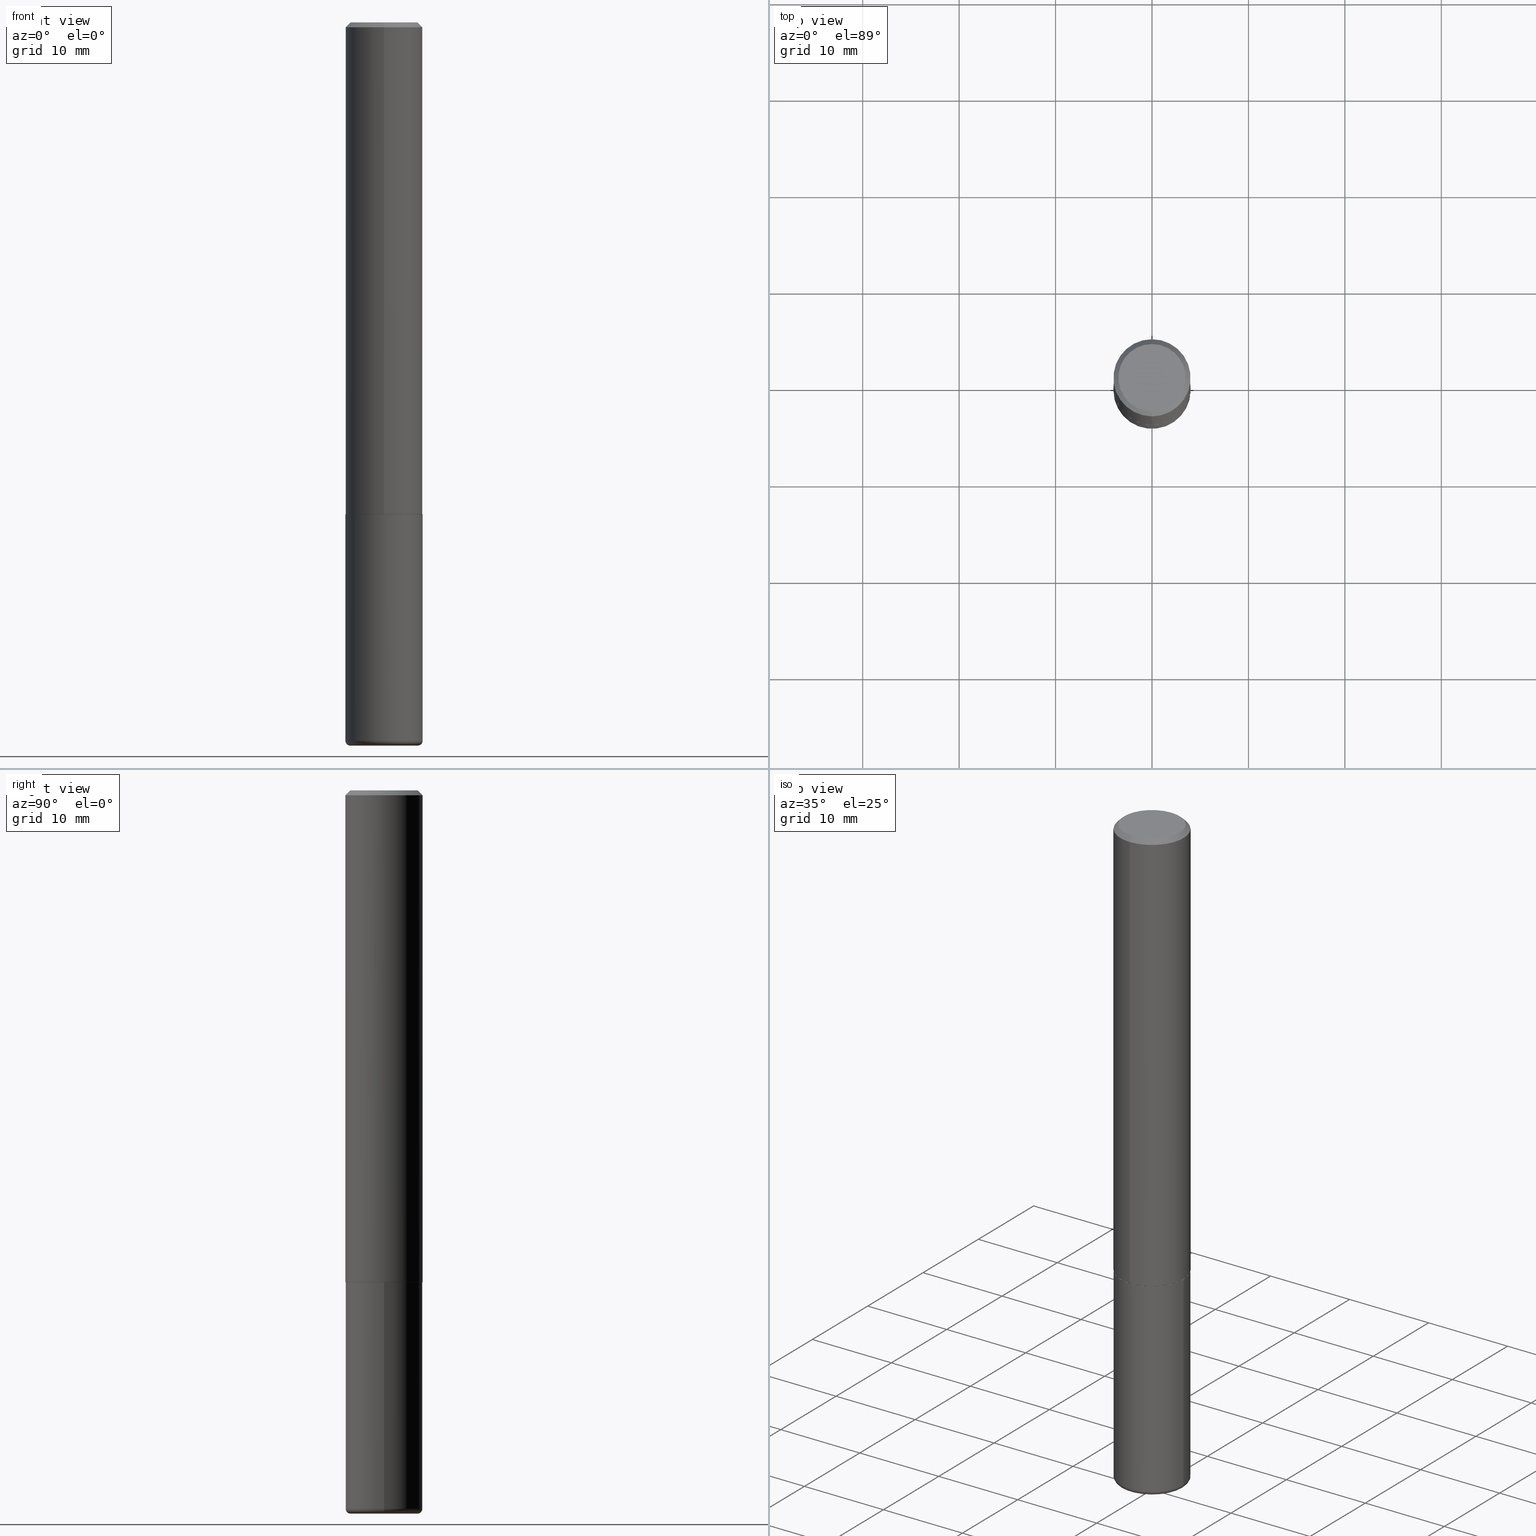
[diagram: canonical four-view strip — front | top / right | iso, engineering-drawing reading convention]
A machine part, canonical four-view strip (front | top / right | iso — engineering-drawing reading convention). The complete STEP part file that produces these views, byte-faithful:
ISO-10303-21;
HEADER;
FILE_DESCRIPTION (( 'STEP AP203' ),
    '1' );
FILE_NAME ('47498.STEP',
    '2024-03-06T03:51:00',
    ( '' ),
    ( '' ),
    'SwSTEP 2.0',
    'SolidWorks 2023',
    '' );
FILE_SCHEMA (( 'CONFIG_CONTROL_DESIGN' ));
ENDSEC;

DATA;
#1 = CC_DESIGN_PERSON_AND_ORGANIZATION_ASSIGNMENT ( #335, #49, ( #238 ) ) ;
#2 = ORIENTED_EDGE ( 'NONE', *, *, #22, .T. ) ;
#3 = LINE ( 'NONE', #181, #110 ) ;
#4 = CC_DESIGN_DATE_AND_TIME_ASSIGNMENT ( #336, #407, ( #371 ) ) ;
#5 = EDGE_LOOP ( 'NONE', ( #158, #120, #314, #282 ) ) ;
#6 = LINE ( 'NONE', #250, #11 ) ;
#7 = ADVANCED_FACE ( 'NONE', ( #367 ), #339, .T. ) ;
#8 = ADVANCED_FACE ( 'NONE', ( #264 ), #409, .T. ) ;
#9 = DIRECTION ( 'NONE',  ( -6.982962677686264344E-15, -1.000000000000000000, 3.496114991891764787E-15 ) ) ;
#10 = APPLICATION_CONTEXT ( 'configuration controlled 3d designs of mechanical parts and assemblies' ) ;
#11 = VECTOR ( 'NONE', #211, 39.37007874015748143 ) ;
#12 = ORGANIZATION ( 'UNSPECIFIED', 'UNSPECIFIED', '' ) ;
#13 = CARTESIAN_POINT ( 'NONE',  ( 0.000000000000000000, 0.000000000000000000, 0.000000000000000000 ) ) ;
#14 = DIRECTION ( 'NONE',  ( -6.982962677686266711E-15, -1.000000000000000000, 3.491481338843145583E-15 ) ) ;
#15 = CARTESIAN_POINT ( 'NONE',  ( 0.000000000000000000, 0.000000000000000000, 0.000000000000000000 ) ) ;
#16 = PERSON_AND_ORGANIZATION ( #153, #12 ) ;
#17 = CC_DESIGN_PERSON_AND_ORGANIZATION_ASSIGNMENT ( #373, #230, ( #215 ) ) ;
#18 = ORIENTED_EDGE ( 'NONE', *, *, #186, .T. ) ;
#19 = PERSON_AND_ORGANIZATION ( #153, #12 ) ;
#20 = AXIS2_PLACEMENT_3D ( 'NONE', #112, #224, #78 ) ;
#21 = SECURITY_CLASSIFICATION_LEVEL ( 'unclassified' ) ;
#22 = EDGE_CURVE ( 'NONE', #184, #284, #266, .T. ) ;
#23 = SHAPE_DEFINITION_REPRESENTATION ( #59, #203 ) ;
#24 = ADVANCED_FACE ( 'NONE', ( #60 ), #130, .T. ) ;
#25 = ORIENTED_EDGE ( 'NONE', *, *, #387, .F. ) ;
#26 = AXIS2_PLACEMENT_3D ( 'NONE', #252, #73, #9 ) ;
#27 = VERTEX_POINT ( 'NONE', #207 ) ;
#28 = CARTESIAN_POINT ( 'NONE',  ( 0.1575000000000000011, -1.099816621735586889E-15, 7.679978421878598033E-30 ) ) ;
#29 = ORIENTED_EDGE ( 'NONE', *, *, #398, .F. ) ;
#30 = CARTESIAN_POINT ( 'NONE',  ( 1.099816621735587480E-15, 0.1574999999999999456, -0.02000000000000058328 ) ) ;
#31 = ORIENTED_EDGE ( 'NONE', *, *, #377, .T. ) ;
#32 = DIRECTION ( 'NONE',  ( -4.851104656540961908E-15, -0.7071067811865496822, -0.7071067811865453523 ) ) ;
#33 = AXIS2_PLACEMENT_3D ( 'NONE', #333, #169, #404 ) ;
#34 = AXIS2_PLACEMENT_3D ( 'NONE', #190, #38, #218 ) ;
#35 = ADVANCED_FACE ( 'NONE', ( #286 ), #47, .T. ) ;
#36 = COORDINATED_UNIVERSAL_TIME_OFFSET ( 5, 0, .BEHIND. ) ;
#37 = ORIENTED_EDGE ( 'NONE', *, *, #138, .F. ) ;
#38 = DIRECTION ( 'NONE',  ( -2.445468806185136597E-29, 3.491481338843145583E-15, 1.000000000000000000 ) ) ;
#39 = DIRECTION ( 'NONE',  ( -6.982962677686265922E-15, -1.000000000000000000, 3.492539597212410327E-15 ) ) ;
#40 = EDGE_CURVE ( 'NONE', #362, #381, #369, .T. ) ;
#41 = CARTESIAN_POINT ( 'NONE',  ( -0.1575000000000000011, 1.119104808822157801E-15, -7.747322767151475583E-30 ) ) ;
#42 = ORIENTED_EDGE ( 'NONE', *, *, #223, .F. ) ;
#43 = FACE_OUTER_BOUND ( 'NONE', #275, .T. ) ;
#44 = CARTESIAN_POINT ( 'NONE',  ( 1.539641889943640501E-28, 1.398047307151391125E-15, -2.952799999999998981 ) ) ;
#45 = APPROVAL_PERSON_ORGANIZATION ( #307, #366, #302 ) ;
#46 = CARTESIAN_POINT ( 'NONE',  ( -6.786541213832790321E-45, 9.695248793097192351E-31, 2.775988223823005522E-16 ) ) ;
#47 = CYLINDRICAL_SURFACE ( 'NONE', #202, 0.1575000000000001399 ) ;
#48 = ORIENTED_EDGE ( 'NONE', *, *, #138, .T. ) ;
#49 = PERSON_AND_ORGANIZATION_ROLE ( 'design_supplier' ) ;
#50 = APPLICATION_PROTOCOL_DEFINITION ( 'international standard', 'config_control_design', 1994, #338 ) ;
#51 = AXIS2_PLACEMENT_3D ( 'NONE', #15, #140, #146 ) ;
#52 =( CONVERSION_BASED_UNIT ( 'INCH', #375 ) LENGTH_UNIT ( ) NAMED_UNIT ( #253 ) );
#53 = AXIS2_PLACEMENT_3D ( 'NONE', #129, #393, #101 ) ;
#54 = PLANE ( 'NONE',  #257 ) ;
#55 = ORIENTED_EDGE ( 'NONE', *, *, #245, .F. ) ;
#56 = ORIENTED_EDGE ( 'NONE', *, *, #157, .T. ) ;
#57 = CIRCLE ( 'NONE', #222, 0.1374999999999997335 ) ;
#58 = CARTESIAN_POINT ( 'NONE',  ( 1.115552095143406798E-15, 0.1564999999999929781, -2.007900000000000240 ) ) ;
#59 = PRODUCT_DEFINITION_SHAPE ( 'NONE', 'NONE',  #215 ) ;
#60 = FACE_OUTER_BOUND ( 'NONE', #98, .T. ) ;
#61 = VERTEX_POINT ( 'NONE', #139 ) ;
#62 = DIRECTION ( 'NONE',  ( -6.982962677686265922E-15, -1.000000000000000000, 3.492539597212410327E-15 ) ) ;
#63 = ADVANCED_FACE ( 'NONE', ( #296 ), #325, .T. ) ;
#64 = EDGE_LOOP ( 'NONE', ( #320, #164 ) ) ;
#65 = CARTESIAN_POINT ( 'NONE',  ( -1.080528434649015779E-15, -0.1575000000000000844, -0.01999999999999948347 ) ) ;
#66 = CALENDAR_DATE ( 2024, 5, 3 ) ;
#67 = EDGE_LOOP ( 'NONE', ( #37, #350 ) ) ;
#68 = CARTESIAN_POINT ( 'NONE',  ( 1.119104808822183439E-15, 0.1574999999999932287, -2.006899999999999906 ) ) ;
#69 = AXIS2_PLACEMENT_3D ( 'NONE', #91, #312, #351 ) ;
#70 = LOCAL_TIME ( 22, 51, 0.000000000000000000, #265 ) ;
#71 = DIRECTION ( 'NONE',  ( -2.444729828315544280E-29, 3.492539597212409932E-15, 1.000000000000000000 ) ) ;
#72 = DIRECTION ( 'NONE',  ( 1.000000000000000000, -6.982962677686261977E-15, 0.000000000000000000 ) ) ;
#73 = DIRECTION ( 'NONE',  ( -2.444729828315544280E-29, 3.492539597212409932E-15, 1.000000000000000000 ) ) ;
#74 = DIRECTION ( 'NONE',  ( -2.444729828315544280E-29, 3.492539597212409932E-15, 1.000000000000000000 ) ) ;
#75 = DIRECTION ( 'NONE',  ( -2.444729828315544280E-29, 3.492539597212409932E-15, 1.000000000000000000 ) ) ;
#76 = ADVANCED_FACE ( 'NONE', ( #263 ), #137, .T. ) ;
#77 = CC_DESIGN_PERSON_AND_ORGANIZATION_ASSIGNMENT ( #19, #141, ( #371 ) ) ;
#78 = DIRECTION ( 'NONE',  ( -6.982962677686265133E-15, -1.000000000000000000, 3.492539597212409932E-15 ) ) ;
#79 = CONICAL_SURFACE ( 'NONE', #396, 0.1565000000000000002, 0.7853981633975336552 ) ;
#80 =( NAMED_UNIT ( * ) SI_UNIT ( $, .STERADIAN. ) SOLID_ANGLE_UNIT ( ) );
#81 = ADVANCED_FACE ( 'NONE', ( #106 ), #415, .T. ) ;
#82 = DIRECTION ( 'NONE',  ( 0.000000000000000000, 0.000000000000000000, 1.000000000000000000 ) ) ;
#83 = DATE_TIME_ROLE ( 'creation_date' ) ;
#84 = ORIENTED_EDGE ( 'NONE', *, *, #361, .T. ) ;
#85 = COORDINATED_UNIVERSAL_TIME_OFFSET ( 5, 0, .BEHIND. ) ;
#86 = VECTOR ( 'NONE', #291, 39.37007874015748143 ) ;
#87 = DIRECTION ( 'NONE',  ( -4.937700262164969294E-15, -0.7071067811866054154, 0.7071067811864896191 ) ) ;
#88 = APPROVAL_DATE_TIME ( #176, #366 ) ;
#89 = APPROVAL ( #267, 'UNSPECIFIED' ) ;
#90 = ORIENTED_EDGE ( 'NONE', *, *, #329, .T. ) ;
#91 = CARTESIAN_POINT ( 'NONE',  ( 7.220980290903469061E-29, -1.030964609733603695E-14, -2.952799999999998981 ) ) ;
#92 = EDGE_LOOP ( 'NONE', ( #271, #411, #175, #323 ) ) ;
#93 = CC_DESIGN_SECURITY_CLASSIFICATION ( #371, ( #238 ) ) ;
#94 = CARTESIAN_POINT ( 'NONE',  ( 0.1574999999999998346, -1.134068053669641403E-14, -2.933100000000000041 ) ) ;
#95 = ADVANCED_FACE ( 'NONE', ( #399 ), #54, .F. ) ;
#96 = DIRECTION ( 'NONE',  ( 7.105427357601001859E-15, 1.000000000000000000, -3.491481338843145583E-15 ) ) ;
#97 = APPROVAL_STATUS ( 'not_yet_approved' ) ;
#98 = EDGE_LOOP ( 'NONE', ( #400, #178, #182, #150 ) ) ;
#99 = DIRECTION ( 'NONE',  ( -2.444729828315543719E-29, 3.492539597212410327E-15, 1.000000000000000000 ) ) ;
#100 = AXIS2_PLACEMENT_3D ( 'NONE', #327, #294, #397 ) ;
#101 = DIRECTION ( 'NONE',  ( -1.000000000000000000, 6.982962677686265922E-15, -4.876176775795935793E-29 ) ) ;
#102 = DESIGN_CONTEXT ( 'detailed design', #10, 'design' ) ;
#103 = DIRECTION ( 'NONE',  ( -2.445468806185136877E-29, 3.491481338843145188E-15, 1.000000000000000000 ) ) ;
#104 = DIRECTION ( 'NONE',  ( 1.000000000000000000, -6.982962677686261977E-15, 0.000000000000000000 ) ) ;
#105 = EDGE_CURVE ( 'NONE', #284, #217, #201, .T. ) ;
#106 = FACE_OUTER_BOUND ( 'NONE', #232, .T. ) ;
#107 = CARTESIAN_POINT ( 'NONE',  ( -0.1378000000000000058, -9.226138656798647747E-15, -2.952799999999998981 ) ) ;
#108 = ORIENTED_EDGE ( 'NONE', *, *, #119, .F. ) ;
#109 = ADVANCED_FACE ( 'NONE', ( #206 ), #318, .T. ) ;
#110 = VECTOR ( 'NONE', #321, 39.37007874015748143 ) ;
#111 = CARTESIAN_POINT ( 'NONE',  ( 0.000000000000000000, 0.000000000000000000, 0.000000000000000000 ) ) ;
#112 = CARTESIAN_POINT ( 'NONE',  ( 0.000000000000000000, 0.000000000000000000, 0.000000000000000000 ) ) ;
#113 = ORIENTED_EDGE ( 'NONE', *, *, #269, .F. ) ;
#114 = EDGE_CURVE ( 'NONE', #284, #184, #376, .T. ) ;
#115 = DIRECTION ( 'NONE',  ( 6.982962677686265922E-15, 1.000000000000000000, -3.492539597212410327E-15 ) ) ;
#116 = AXIS2_PLACEMENT_3D ( 'NONE', #360, #163, #72 ) ;
#117 = PERSON_AND_ORGANIZATION ( #153, #12 ) ;
#118 = ORIENTED_EDGE ( 'NONE', *, *, #219, .T. ) ;
#119 = EDGE_CURVE ( 'NONE', #184, #234, #6, .T. ) ;
#120 = ORIENTED_EDGE ( 'NONE', *, *, #300, .T. ) ;
#121 = CARTESIAN_POINT ( 'NONE',  ( -1.080528434649015779E-15, -0.1575000000000000844, -0.01999999999999948347 ) ) ;
#122 = EDGE_LOOP ( 'NONE', ( #108, #2, #251, #125 ) ) ;
#123 = AXIS2_PLACEMENT_3D ( 'NONE', #191, #349, #62 ) ;
#124 = FACE_OUTER_BOUND ( 'NONE', #64, .T. ) ;
#125 = ORIENTED_EDGE ( 'NONE', *, *, #300, .F. ) ;
#126 = LINE ( 'NONE', #28, #204 ) ;
#127 = ORIENTED_EDGE ( 'NONE', *, *, #40, .F. ) ;
#128 = CARTESIAN_POINT ( 'NONE',  ( -1.099816621735539360E-15, -0.1575000000000072453, -2.006899999999999018 ) ) ;
#129 = CARTESIAN_POINT ( 'NONE',  ( 4.910256815939135309E-29, -7.010545380263150922E-15, -2.007899999999999796 ) ) ;
#130 = CONICAL_SURFACE ( 'NONE', #403, 0.1575000000000000289, 0.7853981633974479459 ) ;
#131 = CIRCLE ( 'NONE', #135, 0.1575000000000000011 ) ;
#132 = DIRECTION ( 'NONE',  ( -6.982962677686265922E-15, -1.000000000000000000, 3.491179544618866730E-15 ) ) ;
#133 = ADVANCED_FACE ( 'NONE', ( #124 ), #159, .F. ) ;
#134 = AXIS2_PLACEMENT_3D ( 'NONE', #273, #287, #389 ) ;
#135 = AXIS2_PLACEMENT_3D ( 'NONE', #395, #168, #104 ) ;
#136 = DIRECTION ( 'NONE',  ( -1.000000000000000000, 6.982962677686265922E-15, -4.876176775795935793E-29 ) ) ;
#137 = CYLINDRICAL_SURFACE ( 'NONE', #355, 0.1575000000000000011 ) ;
#138 = EDGE_CURVE ( 'NONE', #213, #374, #237, .T. ) ;
#139 = CARTESIAN_POINT ( 'NONE',  ( -1.011923454671299856E-15, -0.1374999999999997335, 7.578230169990059811E-16 ) ) ;
#140 = DIRECTION ( 'NONE',  ( -2.445468806185136597E-29, 3.491481338843145583E-15, 1.000000000000000000 ) ) ;
#141 = PERSON_AND_ORGANIZATION_ROLE ( 'classification_officer' ) ;
#142 = AXIS2_PLACEMENT_3D ( 'NONE', #402, #259, #305 ) ;
#143 = VECTOR ( 'NONE', #103, 39.37007874015748143 ) ;
#144 = CARTESIAN_POINT ( 'NONE',  ( 0.000000000000000000, 0.000000000000000000, 0.000000000000000000 ) ) ;
#145 = APPROVAL_DATE_TIME ( #370, #89 ) ;
#146 = DIRECTION ( 'NONE',  ( 1.000000000000000000, -6.982962677686265922E-15, 4.876176775795935232E-29 ) ) ;
#147 = DIRECTION ( 'NONE',  ( 1.000000000000000000, 0.000000000000000000, 0.000000000000000000 ) ) ;
#148 = CARTESIAN_POINT ( 'NONE',  ( 4.908773022274780866E-29, -7.012670257242796607E-15, -2.007899999999999796 ) ) ;
#149 = AXIS2_PLACEMENT_3D ( 'NONE', #240, #99, #414 ) ;
#150 = ORIENTED_EDGE ( 'NONE', *, *, #173, .F. ) ;
#151 = VERTEX_POINT ( 'NONE', #121 ) ;
#152 = VERTEX_POINT ( 'NONE', #30 ) ;
#153 = PERSON ( 'UNSPECIFIED', 'UNSPECIFIED', 'UNSPECIFIED', ('UNSPECIFIED'), ('UNSPECIFIED'), ('UNSPECIFIED') ) ;
#154 = ORIENTED_EDGE ( 'NONE', *, *, #236, .T. ) ;
#155 = AXIS2_PLACEMENT_3D ( 'NONE', #354, #417, #413 ) ;
#156 = LINE ( 'NONE', #65, #166 ) ;
#157 = EDGE_CURVE ( 'NONE', #374, #27, #390, .T. ) ;
#158 = ORIENTED_EDGE ( 'NONE', *, *, #186, .F. ) ;
#159 = PLANE ( 'NONE',  #149 ) ;
#160 = EDGE_CURVE ( 'NONE', #61, #151, #156, .T. ) ;
#161 = DIRECTION ( 'NONE',  ( -2.444729828315544280E-29, 3.492539597212409932E-15, 1.000000000000000000 ) ) ;
#162 = APPROVAL_PERSON_ORGANIZATION ( #310, #359, #183 ) ;
#163 = DIRECTION ( 'NONE',  ( -2.445468806185136597E-29, 3.491481338843145583E-15, 1.000000000000000000 ) ) ;
#164 = ORIENTED_EDGE ( 'NONE', *, *, #22, .F. ) ;
#165 = DIRECTION ( 'NONE',  ( -6.982962677686265922E-15, -1.000000000000000000, 3.469013325287948560E-15 ) ) ;
#166 = VECTOR ( 'NONE', #32, 39.37007874015748143 ) ;
#167 = CIRCLE ( 'NONE', #289, 0.01969999999999962059 ) ;
#168 = DIRECTION ( 'NONE',  ( -2.445468806185136597E-29, 3.491481338843145583E-15, 1.000000000000000000 ) ) ;
#169 = DIRECTION ( 'NONE',  ( -2.445468806185136597E-29, 3.491481338843145583E-15, 1.000000000000000000 ) ) ;
#170 = PERSON_AND_ORGANIZATION_ROLE ( 'design_owner' ) ;
#171 = ORIENTED_EDGE ( 'NONE', *, *, #219, .F. ) ;
#172 = APPROVAL_ROLE ( '' ) ;
#173 = EDGE_CURVE ( 'NONE', #188, #152, #285, .T. ) ;
#174 = CONICAL_SURFACE ( 'NONE', #258, 0.1575000000000000289, 0.7853981633974479459 ) ;
#175 = ORIENTED_EDGE ( 'NONE', *, *, #334, .F. ) ;
#176 = DATE_AND_TIME ( #227, #332 ) ;
#177 =( LENGTH_UNIT ( ) NAMED_UNIT ( * ) SI_UNIT ( $, .METRE. ) );
#178 = ORIENTED_EDGE ( 'NONE', *, *, #160, .T. ) ;
#179 = APPROVAL_PERSON_ORGANIZATION ( #16, #89, #172 ) ;
#180 = EDGE_LOOP ( 'NONE', ( #270, #84 ) ) ;
#181 = CARTESIAN_POINT ( 'NONE',  ( 1.119104808822158392E-15, 0.1575000000000001399, -5.500749865609550376E-16 ) ) ;
#182 = ORIENTED_EDGE ( 'NONE', *, *, #245, .T. ) ;
#183 = APPROVAL_ROLE ( '' ) ;
#184 = VERTEX_POINT ( 'NONE', #58 ) ;
#185 = DIRECTION ( 'NONE',  ( -1.000000000000000000, 7.105427357600965571E-15, 0.000000000000000000 ) ) ;
#186 = EDGE_CURVE ( 'NONE', #234, #152, #3, .T. ) ;
#187 = AXIS2_PLACEMENT_3D ( 'NONE', #148, #161, #214 ) ;
#188 = VERTEX_POINT ( 'NONE', #283 ) ;
#189 = CIRCLE ( 'NONE', #155, 0.1575000000000000011 ) ;
#190 = CARTESIAN_POINT ( 'NONE',  ( 7.220980290903469061E-29, -1.030964609733603695E-14, -2.952799999999998981 ) ) ;
#191 = CARTESIAN_POINT ( 'NONE',  ( -6.786541213832790321E-45, 9.695248793097192351E-31, 2.775988223823005522E-16 ) ) ;
#192 = FACE_OUTER_BOUND ( 'NONE', #92, .T. ) ;
#193 = AXIS2_PLACEMENT_3D ( 'NONE', #144, #82, #147 ) ;
#194 = CARTESIAN_POINT ( 'NONE',  ( -1.099816621735587677E-15, -0.1575000000000001399, 5.500749865609550376E-16 ) ) ;
#195 = CARTESIAN_POINT ( 'NONE',  ( 0.1575000000000000011, -8.110362001998737613E-15, -2.007899999999999796 ) ) ;
#196 = AXIS2_PLACEMENT_3D ( 'NONE', #301, #372, #199 ) ;
#197 = DIRECTION ( 'NONE',  ( -6.982962677686265133E-15, -1.000000000000000000, 3.492539597212409932E-15 ) ) ;
#198 = PERSON_AND_ORGANIZATION_ROLE ( 'creator' ) ;
#199 = DIRECTION ( 'NONE',  ( 1.000000000000000000, -6.982962677686268288E-15, 0.000000000000000000 ) ) ;
#200 = CALENDAR_DATE ( 2024, 5, 3 ) ;
#201 = LINE ( 'NONE', #235, #330 ) ;
#202 = AXIS2_PLACEMENT_3D ( 'NONE', #13, #231, #197 ) ;
#203 = ADVANCED_BREP_SHAPE_REPRESENTATION ( '47498', ( #268, #418, #193 ), #319 ) ;
#204 = VECTOR ( 'NONE', #386, 39.37007874015748143 ) ;
#205 = MECHANICAL_CONTEXT ( 'NONE', #338, 'mechanical' ) ;
#206 = FACE_OUTER_BOUND ( 'NONE', #277, .T. ) ;
#207 = CARTESIAN_POINT ( 'NONE',  ( -0.1574999999999998346, -9.121759106138672895E-15, -2.933100000000000041 ) ) ;
#208 = EDGE_LOOP ( 'NONE', ( #388, #18, #55, #29 ) ) ;
#209 = LOCAL_TIME ( 22, 51, 0.000000000000000000, #85 ) ;
#210 = ORIENTED_EDGE ( 'NONE', *, *, #160, .F. ) ;
#211 = DIRECTION ( 'NONE',  ( 5.024295867788490741E-15, 0.7071067811866103003, 0.7071067811864847341 ) ) ;
#212 = ORIENTED_EDGE ( 'NONE', *, *, #387, .T. ) ;
#213 = VERTEX_POINT ( 'NONE', #278 ) ;
#214 = DIRECTION ( 'NONE',  ( -6.982962677686265922E-15, -1.000000000000000000, 3.491179544618866730E-15 ) ) ;
#215 = PRODUCT_DEFINITION ( 'UNKNOWN', '', #238, #102 ) ;
#216 = LOCAL_TIME ( 22, 51, 0.000000000000000000, #340 ) ;
#217 = VERTEX_POINT ( 'NONE', #128 ) ;
#218 = DIRECTION ( 'NONE',  ( 1.000000000000000000, -6.982962677686265922E-15, 0.000000000000000000 ) ) ;
#219 = EDGE_CURVE ( 'NONE', #381, #362, #189, .T. ) ;
#220 = CARTESIAN_POINT ( 'NONE',  ( 4.889459656631096617E-31, -6.985079194424830218E-17, -0.02000000000000003511 ) ) ;
#221 = DIRECTION ( 'NONE',  ( 6.982962677686264344E-15, 1.000000000000000000, -3.496114991891764787E-15 ) ) ;
#222 = AXIS2_PLACEMENT_3D ( 'NONE', #46, #324, #39 ) ;
#223 = EDGE_CURVE ( 'NONE', #249, #381, #126, .T. ) ;
#224 = DIRECTION ( 'NONE',  ( -2.444729828315544280E-29, 3.492539597212409932E-15, 1.000000000000000000 ) ) ;
#225 = FACE_OUTER_BOUND ( 'NONE', #392, .T. ) ;
#226 = DIRECTION ( 'NONE',  ( -2.445468806185136597E-29, 3.491481338843145583E-15, 1.000000000000000000 ) ) ;
#227 = CALENDAR_DATE ( 2024, 5, 3 ) ;
#228 = UNCERTAINTY_MEASURE_WITH_UNIT (LENGTH_MEASURE( 1.000000000000000082E-05 ), #52, 'distance_accuracy_value', 'NONE');
#229 = CC_DESIGN_APPROVAL ( #366, ( #238 ) ) ;
#230 = PERSON_AND_ORGANIZATION_ROLE ( 'creator' ) ;
#231 = DIRECTION ( 'NONE',  ( -2.444729828315544280E-29, 3.492539597212409932E-15, 1.000000000000000000 ) ) ;
#232 = EDGE_LOOP ( 'NONE', ( #247, #154, #239, #311 ) ) ;
#233 = DATE_AND_TIME ( #299, #216 ) ;
#234 = VERTEX_POINT ( 'NONE', #68 ) ;
#235 = CARTESIAN_POINT ( 'NONE',  ( -1.092833659057851571E-15, -0.1565000000000069946, -2.007899999999998908 ) ) ;
#236 = EDGE_CURVE ( 'NONE', #374, #213, #378, .T. ) ;
#237 = CIRCLE ( 'NONE', #69, 0.1378000000000000058 ) ;
#238 = PRODUCT_DEFINITION_FORMATION_WITH_SPECIFIED_SOURCE ( 'ANY', '', #279, .NOT_KNOWN. ) ;
#239 = ORIENTED_EDGE ( 'NONE', *, *, #382, .T. ) ;
#240 = CARTESIAN_POINT ( 'NONE',  ( 4.908773022274780866E-29, -7.012670257242796607E-15, -2.007899999999999796 ) ) ;
#241 = ORIENTED_EDGE ( 'NONE', *, *, #329, .F. ) ;
#242 = DIRECTION ( 'NONE',  ( -6.982962677686264344E-15, -1.000000000000000000, 3.496114991891764787E-15 ) ) ;
#243 = AXIS2_PLACEMENT_3D ( 'NONE', #280, #352, #383 ) ;
#244 = AXIS2_PLACEMENT_3D ( 'NONE', #358, #71, #242 ) ;
#245 = EDGE_CURVE ( 'NONE', #151, #152, #274, .T. ) ;
#246 = DIRECTION ( 'NONE',  ( 2.444729828315544280E-29, -3.492539597212409932E-15, -1.000000000000000000 ) ) ;
#247 = ORIENTED_EDGE ( 'NONE', *, *, #157, .F. ) ;
#248 = CARTESIAN_POINT ( 'NONE',  ( -0.1378000000000000058, -9.261736025083411415E-15, -2.933100000000000041 ) ) ;
#249 = VERTEX_POINT ( 'NONE', #94 ) ;
#250 = CARTESIAN_POINT ( 'NONE',  ( 1.111999381464605505E-15, 0.1564999999999929781, -2.007900000000000240 ) ) ;
#251 = ORIENTED_EDGE ( 'NONE', *, *, #105, .T. ) ;
#252 = CARTESIAN_POINT ( 'NONE',  ( 4.889459656631096617E-31, -6.985079194424830218E-17, -0.02000000000000003511 ) ) ;
#253 = DIMENSIONAL_EXPONENTS ( 1.000000000000000000, 0.000000000000000000, 0.000000000000000000, 0.000000000000000000, 0.000000000000000000, 0.000000000000000000, 0.000000000000000000 ) ;
#254 = FACE_OUTER_BOUND ( 'NONE', #67, .T. ) ;
#255 = DIRECTION ( 'NONE',  ( 1.000000000000000000, -6.982962677686265133E-15, 0.000000000000000000 ) ) ;
#256 = PLANE ( 'NONE',  #53 ) ;
#257 = AXIS2_PLACEMENT_3D ( 'NONE', #408, #308, #115 ) ;
#258 = AXIS2_PLACEMENT_3D ( 'NONE', #220, #328, #221 ) ;
#259 = DIRECTION ( 'NONE',  ( -2.444729828315544280E-29, 3.492539597212409932E-15, 1.000000000000000000 ) ) ;
#260 = CARTESIAN_POINT ( 'NONE',  ( 0.1378000000000000058, -1.120311617194599798E-14, -2.933100000000000041 ) ) ;
#261 = DIRECTION ( 'NONE',  ( 1.000000000000000000, -6.982962677686265922E-15, 4.876176775795935232E-29 ) ) ;
#262 = CALENDAR_DATE ( 2024, 5, 3 ) ;
#263 = FACE_OUTER_BOUND ( 'NONE', #353, .T. ) ;
#264 = FACE_OUTER_BOUND ( 'NONE', #208, .T. ) ;
#265 = COORDINATED_UNIVERSAL_TIME_OFFSET ( 5, 0, .BEHIND. ) ;
#266 = CIRCLE ( 'NONE', #243, 0.1565000000000000002 ) ;
#267 = APPROVAL_STATUS ( 'not_yet_approved' ) ;
#268 = MANIFOLD_SOLID_BREP ( 'Body-Move/Copy2[1]', #303 ) ;
#269 = EDGE_CURVE ( 'NONE', #188, #61, #281, .T. ) ;
#270 = ORIENTED_EDGE ( 'NONE', *, *, #269, .T. ) ;
#271 = ORIENTED_EDGE ( 'NONE', *, *, #114, .T. ) ;
#272 = COORDINATED_UNIVERSAL_TIME_OFFSET ( 5, 0, .BEHIND. ) ;
#273 = CARTESIAN_POINT ( 'NONE',  ( 7.172804555421624566E-29, -1.024086391496083050E-14, -2.933100000000000041 ) ) ;
#274 = CIRCLE ( 'NONE', #244, 0.1575000000000000289 ) ;
#275 = EDGE_LOOP ( 'NONE', ( #210, #113, #343, #31 ) ) ;
#276 = CC_DESIGN_PERSON_AND_ORGANIZATION_ASSIGNMENT ( #342, #198, ( #238 ) ) ;
#277 = EDGE_LOOP ( 'NONE', ( #48, #56, #25, #406 ) ) ;
#278 = CARTESIAN_POINT ( 'NONE',  ( 0.1378000000000000058, -1.127189835432120443E-14, -2.952799999999998981 ) ) ;
#279 = PRODUCT ( '47498', '47498', '', ( #205 ) ) ;
#280 = CARTESIAN_POINT ( 'NONE',  ( 4.908773022274780866E-29, -7.012670257242796607E-15, -2.007899999999999796 ) ) ;
#281 = CIRCLE ( 'NONE', #123, 0.1374999999999997335 ) ;
#282 = ORIENTED_EDGE ( 'NONE', *, *, #377, .F. ) ;
#283 = CARTESIAN_POINT ( 'NONE',  ( 1.029986994958723590E-15, 0.1374999999999997335, -2.026253722344048274E-16 ) ) ;
#284 = VERTEX_POINT ( 'NONE', #315 ) ;
#285 = LINE ( 'NONE', #322, #295 ) ;
#286 = FACE_OUTER_BOUND ( 'NONE', #5, .T. ) ;
#287 = DIRECTION ( 'NONE',  ( -2.445468806185136597E-29, 3.491481338843145583E-15, 1.000000000000000000 ) ) ;
#288 = ADVANCED_FACE ( 'NONE', ( #192 ), #79, .T. ) ;
#289 = AXIS2_PLACEMENT_3D ( 'NONE', #260, #14, #255 ) ;
#290 = PLANE ( 'NONE',  #356 ) ;
#291 = DIRECTION ( 'NONE',  ( -2.444729828315544280E-29, 3.492539597212410327E-15, 1.000000000000000000 ) ) ;
#292 = CC_DESIGN_PERSON_AND_ORGANIZATION_ASSIGNMENT ( #117, #170, ( #279 ) ) ;
#293 = AXIS2_PLACEMENT_3D ( 'NONE', #248, #96, #185 ) ;
#294 = DIRECTION ( 'NONE',  ( -2.444729828315544280E-29, 3.492539597212409932E-15, 1.000000000000000000 ) ) ;
#295 = VECTOR ( 'NONE', #344, 39.37007874015748143 ) ;
#296 = FACE_OUTER_BOUND ( 'NONE', #122, .T. ) ;
#297 = DIRECTION ( 'NONE',  ( 2.438088387897960049E-29, -3.491481338843145188E-15, -1.000000000000000000 ) ) ;
#298 = EDGE_CURVE ( 'NONE', #27, #249, #326, .T. ) ;
#299 = CALENDAR_DATE ( 2024, 5, 3 ) ;
#300 = EDGE_CURVE ( 'NONE', #234, #217, #416, .T. ) ;
#301 = CARTESIAN_POINT ( 'NONE',  ( 4.910256815939135309E-29, -7.010545380263150922E-15, -2.007899999999999796 ) ) ;
#302 = APPROVAL_ROLE ( '' ) ;
#303 = CLOSED_SHELL ( 'NONE', ( #7, #109, #405, #76, #81, #313 ) ) ;
#304 = LOCAL_TIME ( 22, 51, 0.000000000000000000, #36 ) ;
#305 = DIRECTION ( 'NONE',  ( -6.982962677686265922E-15, -1.000000000000000000, 3.491179544618866730E-15 ) ) ;
#306 = APPROVAL_STATUS ( 'not_yet_approved' ) ;
#307 = PERSON_AND_ORGANIZATION ( #153, #12 ) ;
#308 = DIRECTION ( 'NONE',  ( 2.444729828315543719E-29, -3.492539597212410327E-15, -1.000000000000000000 ) ) ;
#309 = CC_DESIGN_DATE_AND_TIME_ASSIGNMENT ( #233, #83, ( #215 ) ) ;
#310 = PERSON_AND_ORGANIZATION ( #153, #12 ) ;
#311 = ORIENTED_EDGE ( 'NONE', *, *, #298, .F. ) ;
#312 = DIRECTION ( 'NONE',  ( -2.445468806185136597E-29, 3.491481338843145583E-15, 1.000000000000000000 ) ) ;
#313 = ADVANCED_FACE ( 'NONE', ( #254 ), #290, .T. ) ;
#314 = ORIENTED_EDGE ( 'NONE', *, *, #398, .T. ) ;
#315 = CARTESIAN_POINT ( 'NONE',  ( -1.092833659057851571E-15, -0.1565000000000069946, -2.007899999999998908 ) ) ;
#316 = APPROVAL_DATE_TIME ( #346, #359 ) ;
#317 = ORIENTED_EDGE ( 'NONE', *, *, #223, .T. ) ;
#318 = TOROIDAL_SURFACE ( 'NONE', #134, 0.1378000000000000058, 0.01969999999999962059 ) ;
#319 =( GEOMETRIC_REPRESENTATION_CONTEXT ( 3 ) GLOBAL_UNCERTAINTY_ASSIGNED_CONTEXT ( ( #228 ) ) GLOBAL_UNIT_ASSIGNED_CONTEXT ( ( #52, #401, #80 ) ) REPRESENTATION_CONTEXT ( 'NONE', 'WORKASPACE' ) );
#320 = ORIENTED_EDGE ( 'NONE', *, *, #114, .F. ) ;
#321 = DIRECTION ( 'NONE',  ( -2.444729828315544280E-29, 3.492539597212410327E-15, 1.000000000000000000 ) ) ;
#322 = CARTESIAN_POINT ( 'NONE',  ( 1.099816621735587480E-15, 0.1574999999999999456, -0.02000000000000058328 ) ) ;
#323 = ORIENTED_EDGE ( 'NONE', *, *, #105, .F. ) ;
#324 = DIRECTION ( 'NONE',  ( -2.444729828315544280E-29, 3.492539597212409932E-15, 1.000000000000000000 ) ) ;
#325 = CONICAL_SURFACE ( 'NONE', #142, 0.1565000000000000002, 0.7853981633975336552 ) ;
#326 = CIRCLE ( 'NONE', #116, 0.1575000000000000011 ) ;
#327 = CARTESIAN_POINT ( 'NONE',  ( 4.906328292446464760E-29, -7.009177717645583542E-15, -2.006899999999999462 ) ) ;
#328 = DIRECTION ( 'NONE',  ( 2.444729828315544280E-29, -3.492539597212409932E-15, -1.000000000000000000 ) ) ;
#329 = EDGE_CURVE ( 'NONE', #27, #362, #331, .T. ) ;
#330 = VECTOR ( 'NONE', #87, 39.37007874015748143 ) ;
#331 = LINE ( 'NONE', #41, #143 ) ;
#332 = LOCAL_TIME ( 22, 51, 0.000000000000000000, #272 ) ;
#333 = CARTESIAN_POINT ( 'NONE',  ( 7.172804555421624566E-29, -1.024086391496083050E-14, -2.933100000000000041 ) ) ;
#334 = EDGE_CURVE ( 'NONE', #217, #234, #345, .T. ) ;
#335 = PERSON_AND_ORGANIZATION ( #153, #12 ) ;
#336 = DATE_AND_TIME ( #200, #70 ) ;
#337 = CIRCLE ( 'NONE', #26, 0.1575000000000000289 ) ;
#338 = APPLICATION_CONTEXT ( 'configuration controlled 3d designs of mechanical parts and assemblies' ) ;
#339 = CYLINDRICAL_SURFACE ( 'NONE', #51, 0.1575000000000000011 ) ;
#340 = COORDINATED_UNIVERSAL_TIME_OFFSET ( 5, 0, .BEHIND. ) ;
#341 = PRODUCT_RELATED_PRODUCT_CATEGORY ( 'detail', '', ( #279 ) ) ;
#342 = PERSON_AND_ORGANIZATION ( #153, #12 ) ;
#343 = ORIENTED_EDGE ( 'NONE', *, *, #173, .T. ) ;
#344 = DIRECTION ( 'NONE',  ( 4.937700262164545676E-15, 0.7071067811865447972, -0.7071067811865502373 ) ) ;
#345 = CIRCLE ( 'NONE', #364, 0.1575000000000002232 ) ;
#346 = DATE_AND_TIME ( #66, #304 ) ;
#347 = ADVANCED_FACE ( 'NONE', ( #43 ), #174, .T. ) ;
#348 = ORIENTED_EDGE ( 'NONE', *, *, #40, .T. ) ;
#349 = DIRECTION ( 'NONE',  ( -2.444729828315544280E-29, 3.492539597212409932E-15, 1.000000000000000000 ) ) ;
#350 = ORIENTED_EDGE ( 'NONE', *, *, #236, .F. ) ;
#351 = DIRECTION ( 'NONE',  ( 1.000000000000000000, -6.982962677686265922E-15, 0.000000000000000000 ) ) ;
#352 = DIRECTION ( 'NONE',  ( -2.444729828315544280E-29, 3.492539597212409932E-15, 1.000000000000000000 ) ) ;
#353 = EDGE_LOOP ( 'NONE', ( #241, #412, #317, #127 ) ) ;
#354 = CARTESIAN_POINT ( 'NONE',  ( 4.910256815939135309E-29, -7.010545380263150922E-15, -2.007899999999999796 ) ) ;
#355 = AXIS2_PLACEMENT_3D ( 'NONE', #111, #226, #261 ) ;
#356 = AXIS2_PLACEMENT_3D ( 'NONE', #44, #297, #136 ) ;
#357 = EDGE_LOOP ( 'NONE', ( #212, #90, #171, #42 ) ) ;
#358 = CARTESIAN_POINT ( 'NONE',  ( 4.889459656631096617E-31, -6.985079194424830218E-17, -0.02000000000000003511 ) ) ;
#359 = APPROVAL ( #97, 'UNSPECIFIED' ) ;
#360 = CARTESIAN_POINT ( 'NONE',  ( 7.172804555421624566E-29, -1.024086391496083050E-14, -2.933100000000000041 ) ) ;
#361 = EDGE_CURVE ( 'NONE', #61, #188, #57, .T. ) ;
#362 = VERTEX_POINT ( 'NONE', #363 ) ;
#363 = CARTESIAN_POINT ( 'NONE',  ( -0.1575000000000000011, -7.506599838789833107E-15, -2.007899999999999796 ) ) ;
#364 = AXIS2_PLACEMENT_3D ( 'NONE', #394, #75, #165 ) ;
#365 = LINE ( 'NONE', #194, #86 ) ;
#366 = APPROVAL ( #306, 'UNSPECIFIED' ) ;
#367 = FACE_OUTER_BOUND ( 'NONE', #357, .T. ) ;
#368 = CARTESIAN_POINT ( 'NONE',  ( 4.908773022274780866E-29, -7.012670257242796607E-15, -2.007899999999999796 ) ) ;
#369 = CIRCLE ( 'NONE', #196, 0.1575000000000000011 ) ;
#370 = DATE_AND_TIME ( #262, #209 ) ;
#371 = SECURITY_CLASSIFICATION ( '', '', #21 ) ;
#372 = DIRECTION ( 'NONE',  ( -2.445468806185136597E-29, 3.491481338843145583E-15, 1.000000000000000000 ) ) ;
#373 = PERSON_AND_ORGANIZATION ( #153, #12 ) ;
#374 = VERTEX_POINT ( 'NONE', #107 ) ;
#375 = LENGTH_MEASURE_WITH_UNIT ( LENGTH_MEASURE( 0.02539999999999999897 ), #177 );
#376 = CIRCLE ( 'NONE', #187, 0.1565000000000000002 ) ;
#377 = EDGE_CURVE ( 'NONE', #152, #151, #337, .T. ) ;
#378 = CIRCLE ( 'NONE', #34, 0.1378000000000000058 ) ;
#379 = CARTESIAN_POINT ( 'NONE',  ( 4.889459656631096617E-31, -6.985079194424830218E-17, -0.02000000000000003511 ) ) ;
#380 = APPLICATION_PROTOCOL_DEFINITION ( 'international standard', 'config_control_design', 1994, #10 ) ;
#381 = VERTEX_POINT ( 'NONE', #195 ) ;
#382 = EDGE_CURVE ( 'NONE', #213, #249, #167, .T. ) ;
#383 = DIRECTION ( 'NONE',  ( -6.982962677686265922E-15, -1.000000000000000000, 3.491179544618866730E-15 ) ) ;
#384 = CLOSED_SHELL ( 'NONE', ( #288, #8, #24, #347, #35, #63, #133, #95 ) ) ;
#385 = DIRECTION ( 'NONE',  ( 6.982962677686264344E-15, 1.000000000000000000, -3.496114991891764787E-15 ) ) ;
#386 = DIRECTION ( 'NONE',  ( -2.445468806185136877E-29, 3.491481338843145188E-15, 1.000000000000000000 ) ) ;
#387 = EDGE_CURVE ( 'NONE', #249, #27, #131, .T. ) ;
#388 = ORIENTED_EDGE ( 'NONE', *, *, #334, .T. ) ;
#389 = DIRECTION ( 'NONE',  ( 1.000000000000000000, -6.982962677686266711E-15, 4.883557194083112901E-29 ) ) ;
#390 = CIRCLE ( 'NONE', #293, 0.01969999999999962059 ) ;
#391 = CC_DESIGN_APPROVAL ( #359, ( #371 ) ) ;
#392 = EDGE_LOOP ( 'NONE', ( #118, #348 ) ) ;
#393 = DIRECTION ( 'NONE',  ( 2.438088387897960049E-29, -3.491481338843145188E-15, -1.000000000000000000 ) ) ;
#394 = CARTESIAN_POINT ( 'NONE',  ( 4.906328292446464760E-29, -7.009177717645583542E-15, -2.006899999999999462 ) ) ;
#395 = CARTESIAN_POINT ( 'NONE',  ( 7.172804555421624566E-29, -1.024086391496083050E-14, -2.933100000000000041 ) ) ;
#396 = AXIS2_PLACEMENT_3D ( 'NONE', #368, #74, #132 ) ;
#397 = DIRECTION ( 'NONE',  ( -6.982962677686265922E-15, -1.000000000000000000, 3.469013325287948560E-15 ) ) ;
#398 = EDGE_CURVE ( 'NONE', #217, #151, #365, .T. ) ;
#399 = FACE_OUTER_BOUND ( 'NONE', #180, .T. ) ;
#400 = ORIENTED_EDGE ( 'NONE', *, *, #361, .F. ) ;
#401 =( NAMED_UNIT ( * ) PLANE_ANGLE_UNIT ( ) SI_UNIT ( $, .RADIAN. ) );
#402 = CARTESIAN_POINT ( 'NONE',  ( 4.908773022274780866E-29, -7.012670257242796607E-15, -2.007899999999999796 ) ) ;
#403 = AXIS2_PLACEMENT_3D ( 'NONE', #379, #246, #385 ) ;
#404 = DIRECTION ( 'NONE',  ( 1.000000000000000000, -6.982962677686266711E-15, 4.883557194083112901E-29 ) ) ;
#405 = ADVANCED_FACE ( 'NONE', ( #225 ), #256, .F. ) ;
#406 = ORIENTED_EDGE ( 'NONE', *, *, #382, .F. ) ;
#407 = DATE_TIME_ROLE ( 'classification_date' ) ;
#408 = CARTESIAN_POINT ( 'NONE',  ( 9.601573681818597005E-16, 0.1374999999999997335, -3.414247834255550788E-16 ) ) ;
#409 = CYLINDRICAL_SURFACE ( 'NONE', #20, 0.1575000000000001399 ) ;
#410 = CC_DESIGN_APPROVAL ( #89, ( #215 ) ) ;
#411 = ORIENTED_EDGE ( 'NONE', *, *, #119, .T. ) ;
#412 = ORIENTED_EDGE ( 'NONE', *, *, #298, .T. ) ;
#413 = DIRECTION ( 'NONE',  ( 1.000000000000000000, -6.982962677686268288E-15, 0.000000000000000000 ) ) ;
#414 = DIRECTION ( 'NONE',  ( -6.982962677686265922E-15, -1.000000000000000000, 3.492539597212410327E-15 ) ) ;
#415 = TOROIDAL_SURFACE ( 'NONE', #33, 0.1378000000000000058, 0.01969999999999962059 ) ;
#416 = CIRCLE ( 'NONE', #100, 0.1575000000000002232 ) ;
#417 = DIRECTION ( 'NONE',  ( -2.445468806185136597E-29, 3.491481338843145583E-15, 1.000000000000000000 ) ) ;
#418 = MANIFOLD_SOLID_BREP ( 'Body-Move/Copy2[2]', #384 ) ;
ENDSEC;
END-ISO-10303-21;
